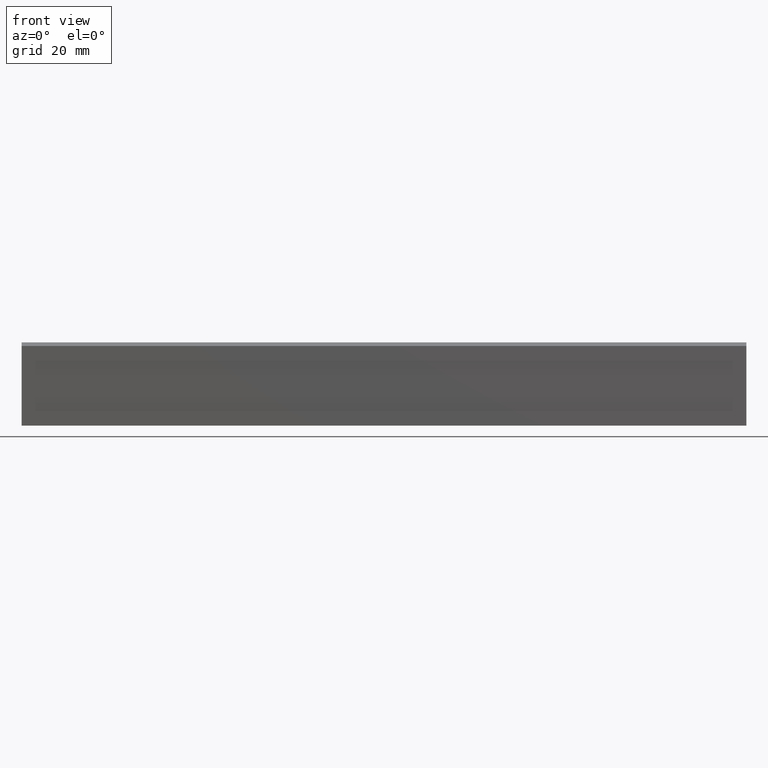
[diagram: clean part render]
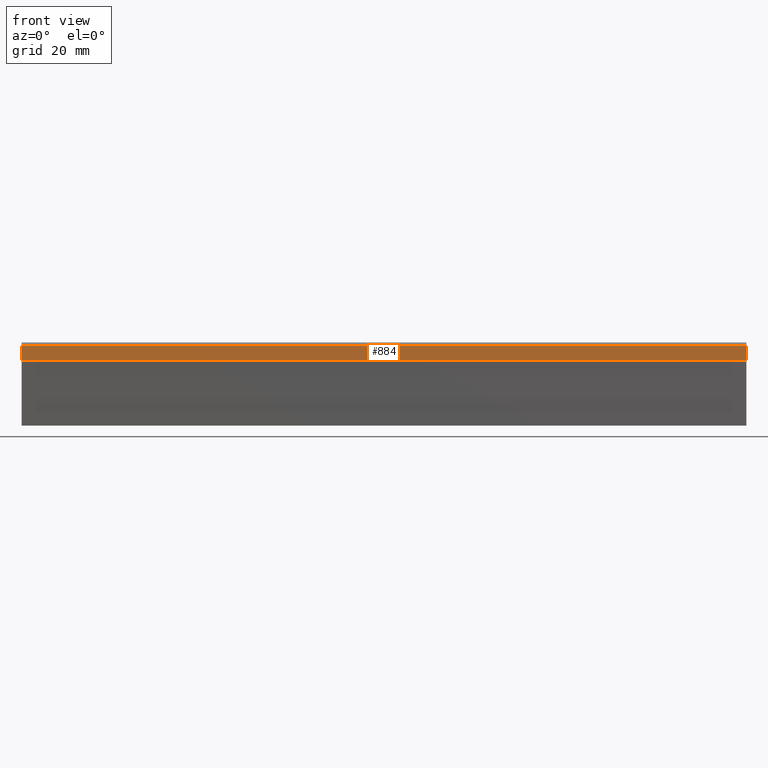
[diagram: same view with one face highlighted and labeled with its STEP entity id]
A machine part, front view. The second image highlights one B-rep face of the part: STEP entity #884.
In plain terms, the highlighted face is a freeform B-spline surface patch.
Its self-contained STEP definition (entity closure, byte-faithful):
#437=CARTESIAN_POINT('',(0.0,-15.0,-1.0));
#438=VERTEX_POINT('',#437);
#439=CARTESIAN_POINT('',(0.0,-15.0,-5.0));
#440=VERTEX_POINT('',#439);
#441=CARTESIAN_POINT('',(0.0,-15.0,-1.0));
#442=CARTESIAN_POINT('',(0.0,-15.0,-5.0));
#443=QUASI_UNIFORM_CURVE('',1,(#441,#442),.UNSPECIFIED.,.F.,.U.);
#444=EDGE_CURVE('',#438,#440,#443,.T.);
#553=CARTESIAN_POINT('',(200.0,-15.0,-1.0));
#554=VERTEX_POINT('',#553);
#555=CARTESIAN_POINT('',(200.0,-15.0,-5.0));
#556=VERTEX_POINT('',#555);
#557=CARTESIAN_POINT('',(200.0,-15.0,-1.0));
#558=CARTESIAN_POINT('',(200.0,-15.0,-5.0));
#559=QUASI_UNIFORM_CURVE('',1,(#557,#558),.UNSPECIFIED.,.F.,.U.);
#560=EDGE_CURVE('',#554,#556,#559,.T.);
#670=CARTESIAN_POINT('',(200.0,-15.0,-1.0));
#671=CARTESIAN_POINT('',(0.0,-15.0,-1.0));
#672=QUASI_UNIFORM_CURVE('',1,(#670,#671),.UNSPECIFIED.,.F.,.U.);
#673=EDGE_CURVE('',#554,#438,#672,.T.);
#865=CARTESIAN_POINT('',(200.0,-15.0,-5.0));
#866=CARTESIAN_POINT('',(0.0,-15.0,-5.0));
#867=QUASI_UNIFORM_CURVE('',1,(#865,#866),.UNSPECIFIED.,.F.,.U.);
#868=EDGE_CURVE('',#556,#440,#867,.T.);
#873=CARTESIAN_POINT('',(-9.989999612361194,-15.0,-5.199799992247224));
#874=CARTESIAN_POINT('',(-9.989999612361194,-15.0,-0.800199900464416));
#875=CARTESIAN_POINT('',(209.990004976779200,-15.0,-5.199799992247224));
#876=CARTESIAN_POINT('',(209.990004976779200,-15.0,-0.800199900464416));
#877=B_SPLINE_SURFACE_WITH_KNOTS('',1,1,((#873,#875),(#874,#876)),.UNSPECIFIED.,.F.,.F.,.U.,(2,2),(2,2),(0.0,4.399600091782808),(0.0,219.980004589140410),.UNSPECIFIED.);
#878=ORIENTED_EDGE('',*,*,#444,.T.);
#879=ORIENTED_EDGE('',*,*,#868,.F.);
#880=ORIENTED_EDGE('',*,*,#560,.F.);
#881=ORIENTED_EDGE('',*,*,#673,.T.);
#882=EDGE_LOOP('',(#878,#879,#880,#881));
#883=FACE_OUTER_BOUND('',#882,.T.);
#884=ADVANCED_FACE('',(#883),#877,.F.);